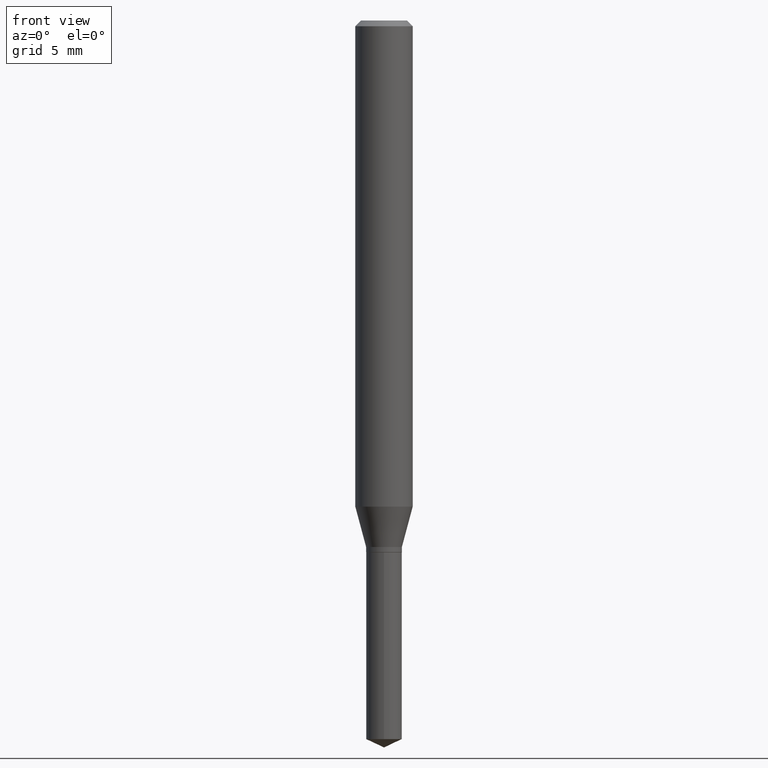
[diagram: clean part render]
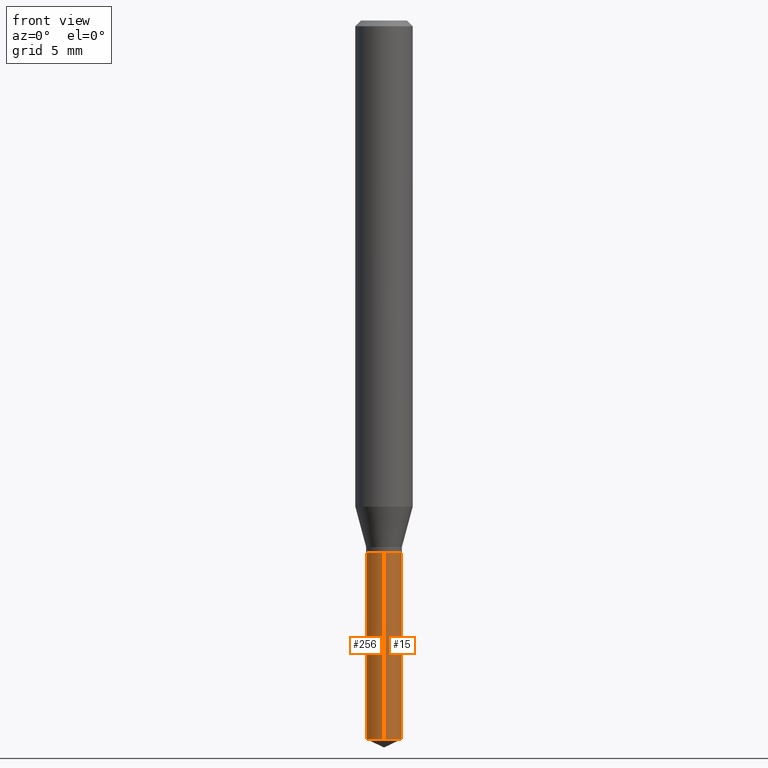
[diagram: same view with one multi-face feature highlighted, each face labeled with its STEP entity id]
A machine part, front view. The highlighted faces form ONE feature: a constant-radius fillet chain: 2 tangent blend faces with common blend radius 0.9347 mm. The faces share edges in the B-rep.
Their STEP definitions:
[1] entity #15 (Cylinder):
#4 = EDGE_CURVE ( 'NONE', #159, #339, #353, .T. ) ;
#6 = CARTESIAN_POINT ( 'NONE',  ( 2.676565608369631794E-29, -3.821426325363822773E-15, -1.094499999999999806 ) ) ;
#15 = ADVANCED_FACE ( 'NONE', ( #122 ), #316, .T. ) ;
#16 = DIRECTION ( 'NONE',  ( -2.445458899330790108E-29, 3.491495526022433205E-15, 1.000000000000000000 ) ) ;
#29 = VECTOR ( 'NONE', #361, 39.37007874015748143 ) ;
#33 = VERTEX_POINT ( 'NONE', #435 ) ;
#49 = LINE ( 'NONE', #203, #29 ) ;
#53 = DIRECTION ( 'NONE',  ( -2.445458899330790108E-29, 3.491495526022433205E-15, 1.000000000000000000 ) ) ;
#55 = ORIENTED_EDGE ( 'NONE', *, *, #4, .T. ) ;
#97 = EDGE_CURVE ( 'NONE', #149, #159, #163, .T. ) ;
#122 = FACE_OUTER_BOUND ( 'NONE', #144, .T. ) ;
#144 = EDGE_LOOP ( 'NONE', ( #185, #55, #457, #190 ) ) ;
#149 = VERTEX_POINT ( 'NONE', #208 ) ;
#159 = VERTEX_POINT ( 'NONE', #452 ) ;
#163 = CIRCLE ( 'NONE', #238, 0.03680000000000000632 ) ;
#166 = CARTESIAN_POINT ( 'NONE',  ( 2.676565608369631794E-29, -3.821426325363822773E-15, -1.094499999999999806 ) ) ;
#185 = ORIENTED_EDGE ( 'NONE', *, *, #97, .T. ) ;
#190 = ORIENTED_EDGE ( 'NONE', *, *, #331, .F. ) ;
#197 = DIRECTION ( 'NONE',  ( -2.445458899330790108E-29, 3.491495526022433599E-15, 1.000000000000000000 ) ) ;
#198 = DIRECTION ( 'NONE',  ( -6.982962677686265922E-15, -1.000000000000000000, 0.000000000000000000 ) ) ;
#200 = AXIS2_PLACEMENT_3D ( 'NONE', #6, #465, #264 ) ;
#203 = CARTESIAN_POINT ( 'NONE',  ( -2.569730265388278225E-16, -0.03680000000000382271, -1.094499999999999806 ) ) ;
#208 = CARTESIAN_POINT ( 'NONE',  ( -2.569730265388184054E-16, -0.03680000000000516192, -1.478939878179896139 ) ) ;
#238 = AXIS2_PLACEMENT_3D ( 'NONE', #351, #53, #198 ) ;
#264 = DIRECTION ( 'NONE',  ( -6.982962677686265922E-15, -1.000000000000000000, 3.711749991391662277E-15 ) ) ;
#316 = CYLINDRICAL_SURFACE ( 'NONE', #200, 0.03679999999999999938 ) ;
#331 = EDGE_CURVE ( 'NONE', #149, #33, #49, .T. ) ;
#339 = VERTEX_POINT ( 'NONE', #405 ) ;
#351 = CARTESIAN_POINT ( 'NONE',  ( 3.616697529722304040E-29, -5.163696440053538926E-15, -1.478939878179896139 ) ) ;
#353 = LINE ( 'NONE', #460, #453 ) ;
#356 = AXIS2_PLACEMENT_3D ( 'NONE', #166, #16, #474 ) ;
#361 = DIRECTION ( 'NONE',  ( -2.445458899330790108E-29, 3.491495526022433599E-15, 1.000000000000000000 ) ) ;
#405 = CARTESIAN_POINT ( 'NONE',  ( 2.614797267597530530E-16, 0.03679999999999618299, -1.094500000000000028 ) ) ;
#435 = CARTESIAN_POINT ( 'NONE',  ( -2.569730265388278225E-16, -0.03680000000000382271, -1.094499999999999806 ) ) ;
#448 = EDGE_CURVE ( 'NONE', #33, #339, #484, .T. ) ;
#452 = CARTESIAN_POINT ( 'NONE',  ( 2.614797267597529544E-16, 0.03679999999999482990, -1.478939878179896139 ) ) ;
#453 = VECTOR ( 'NONE', #197, 39.37007874015748143 ) ;
#457 = ORIENTED_EDGE ( 'NONE', *, *, #448, .F. ) ;
#460 = CARTESIAN_POINT ( 'NONE',  ( 2.614797267597435866E-16, 0.03679999999999618299, -1.094500000000000028 ) ) ;
#465 = DIRECTION ( 'NONE',  ( -2.445458899330790108E-29, 3.491495526022433205E-15, 1.000000000000000000 ) ) ;
#474 = DIRECTION ( 'NONE',  ( -6.982962677686265922E-15, -1.000000000000000000, 3.711749991391662277E-15 ) ) ;
#484 = CIRCLE ( 'NONE', #356, 0.03679999999999999938 ) ;
[2] entity #256 (Cylinder):
#4 = EDGE_CURVE ( 'NONE', #159, #339, #353, .T. ) ;
#29 = VECTOR ( 'NONE', #361, 39.37007874015748143 ) ;
#33 = VERTEX_POINT ( 'NONE', #435 ) ;
#49 = LINE ( 'NONE', #203, #29 ) ;
#58 = CIRCLE ( 'NONE', #252, 0.03680000000000000632 ) ;
#62 = CARTESIAN_POINT ( 'NONE',  ( 3.616697529722304040E-29, -5.163696440053538926E-15, -1.478939878179896139 ) ) ;
#95 = ORIENTED_EDGE ( 'NONE', *, *, #4, .F. ) ;
#149 = VERTEX_POINT ( 'NONE', #208 ) ;
#153 = EDGE_CURVE ( 'NONE', #339, #33, #282, .T. ) ;
#159 = VERTEX_POINT ( 'NONE', #452 ) ;
#180 = DIRECTION ( 'NONE',  ( -6.982962677686265922E-15, -1.000000000000000000, 3.711749991391662277E-15 ) ) ;
#197 = DIRECTION ( 'NONE',  ( -2.445458899330790108E-29, 3.491495526022433599E-15, 1.000000000000000000 ) ) ;
#203 = CARTESIAN_POINT ( 'NONE',  ( -2.569730265388278225E-16, -0.03680000000000382271, -1.094499999999999806 ) ) ;
#206 = DIRECTION ( 'NONE',  ( -2.445458899330790108E-29, 3.491495526022433205E-15, 1.000000000000000000 ) ) ;
#207 = CARTESIAN_POINT ( 'NONE',  ( 2.676565608369631794E-29, -3.821426325363822773E-15, -1.094499999999999806 ) ) ;
#208 = CARTESIAN_POINT ( 'NONE',  ( -2.569730265388184054E-16, -0.03680000000000516192, -1.478939878179896139 ) ) ;
#211 = FACE_OUTER_BOUND ( 'NONE', #281, .T. ) ;
#252 = AXIS2_PLACEMENT_3D ( 'NONE', #62, #206, #478 ) ;
#256 = ADVANCED_FACE ( 'NONE', ( #211 ), #329, .T. ) ;
#271 = ORIENTED_EDGE ( 'NONE', *, *, #331, .T. ) ;
#281 = EDGE_LOOP ( 'NONE', ( #95, #333, #271, #424 ) ) ;
#282 = CIRCLE ( 'NONE', #476, 0.03679999999999999938 ) ;
#329 = CYLINDRICAL_SURFACE ( 'NONE', #348, 0.03679999999999999938 ) ;
#331 = EDGE_CURVE ( 'NONE', #149, #33, #49, .T. ) ;
#333 = ORIENTED_EDGE ( 'NONE', *, *, #418, .T. ) ;
#339 = VERTEX_POINT ( 'NONE', #405 ) ;
#348 = AXIS2_PLACEMENT_3D ( 'NONE', #207, #481, #363 ) ;
#353 = LINE ( 'NONE', #460, #453 ) ;
#361 = DIRECTION ( 'NONE',  ( -2.445458899330790108E-29, 3.491495526022433599E-15, 1.000000000000000000 ) ) ;
#362 = CARTESIAN_POINT ( 'NONE',  ( 2.676565608369631794E-29, -3.821426325363822773E-15, -1.094499999999999806 ) ) ;
#363 = DIRECTION ( 'NONE',  ( -6.982962677686265922E-15, -1.000000000000000000, 3.711749991391662277E-15 ) ) ;
#368 = DIRECTION ( 'NONE',  ( -2.445458899330790108E-29, 3.491495526022433205E-15, 1.000000000000000000 ) ) ;
#405 = CARTESIAN_POINT ( 'NONE',  ( 2.614797267597530530E-16, 0.03679999999999618299, -1.094500000000000028 ) ) ;
#418 = EDGE_CURVE ( 'NONE', #159, #149, #58, .T. ) ;
#424 = ORIENTED_EDGE ( 'NONE', *, *, #153, .F. ) ;
#435 = CARTESIAN_POINT ( 'NONE',  ( -2.569730265388278225E-16, -0.03680000000000382271, -1.094499999999999806 ) ) ;
#452 = CARTESIAN_POINT ( 'NONE',  ( 2.614797267597529544E-16, 0.03679999999999482990, -1.478939878179896139 ) ) ;
#453 = VECTOR ( 'NONE', #197, 39.37007874015748143 ) ;
#460 = CARTESIAN_POINT ( 'NONE',  ( 2.614797267597435866E-16, 0.03679999999999618299, -1.094500000000000028 ) ) ;
#476 = AXIS2_PLACEMENT_3D ( 'NONE', #362, #368, #180 ) ;
#478 = DIRECTION ( 'NONE',  ( -6.982962677686265922E-15, -1.000000000000000000, 0.000000000000000000 ) ) ;
#481 = DIRECTION ( 'NONE',  ( -2.445458899330790108E-29, 3.491495526022433205E-15, 1.000000000000000000 ) ) ;